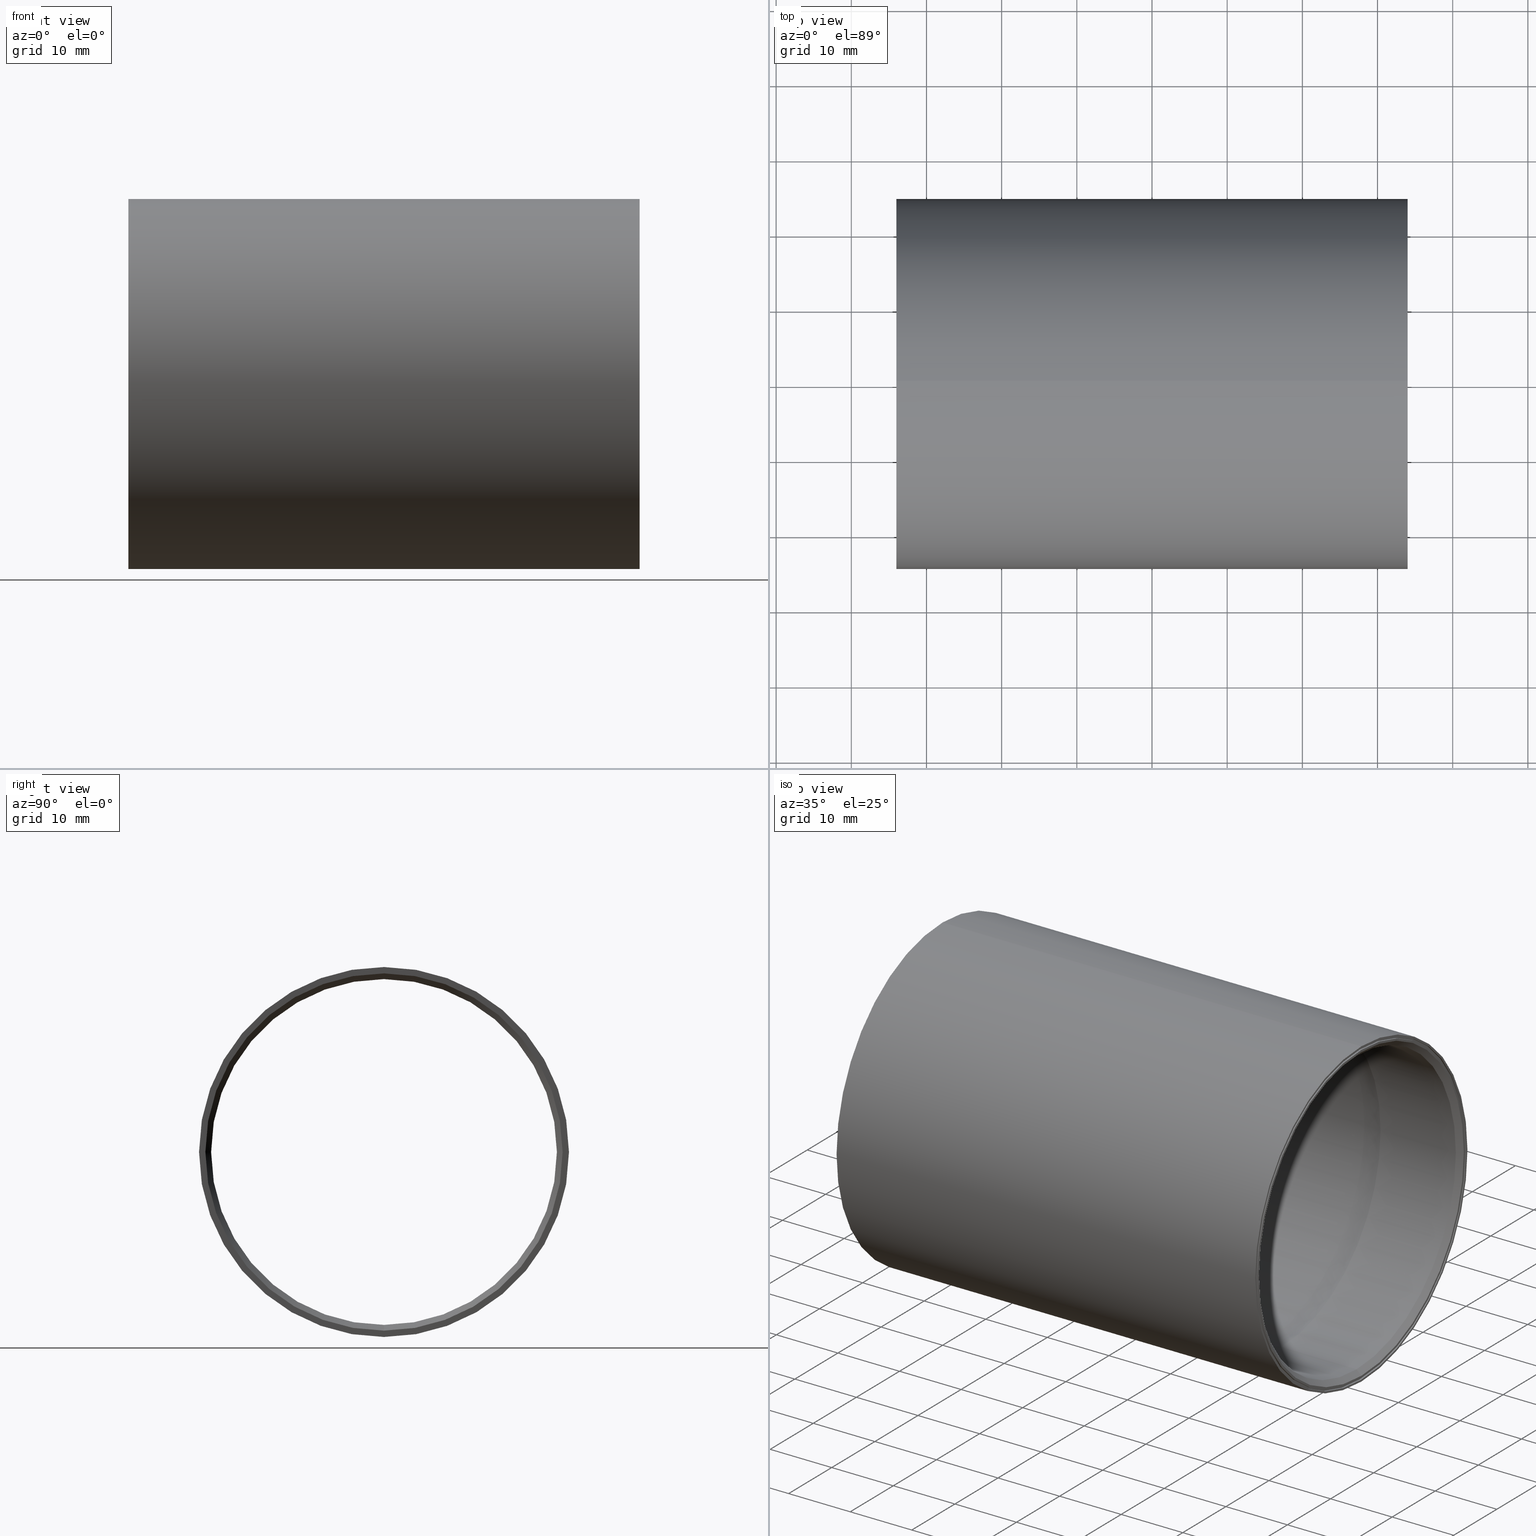
[diagram: canonical four-view strip — front | top / right | iso, engineering-drawing reading convention]
A machine part, canonical four-view strip (front | top / right | iso — engineering-drawing reading convention). The complete STEP part file that produces these views, byte-faithful:
ISO-10303-21;
HEADER;
FILE_DESCRIPTION (( 'STEP AP214' ),
    '1' );
FILE_NAME ('BB4001.STEP',
    '2016-01-05T17:14:59',
    ( 'JeffCAD' ),
    ( 'Microsoft' ),
    'SwSTEP 2.0',
    'SolidWorks 2016',
    '' );
FILE_SCHEMA (( 'AUTOMOTIVE_DESIGN' ));
ENDSEC;

DATA;
#1 = DIRECTION ( 'NONE',  ( 0.0000000000000000000, 0.0000000000000000000, 1.000000000000000000 ) ) ;
#2 = ORIENTED_EDGE ( 'NONE', *, *, #284, .T. ) ;
#3 = LINE ( 'NONE', #164, #132 ) ;
#4 = AXIS2_PLACEMENT_3D ( 'NONE', #678, #85, #223 ) ;
#5 = CARTESIAN_POINT ( 'NONE',  ( 0.7142259959213941300, 0.0000000000000000000, 0.0000000000000000000 ) ) ;
#6 = ORIENTED_EDGE ( 'NONE', *, *, #323, .T. ) ;
#7 = ORIENTED_EDGE ( 'NONE', *, *, #185, .T. ) ;
#8 = VECTOR ( 'NONE', #357, 39.37007874015748100 ) ;
#9 = LINE ( 'NONE', #54, #563 ) ;
#10 = ORIENTED_EDGE ( 'NONE', *, *, #332, .F. ) ;
#11 = LINE ( 'NONE', #530, #687 ) ;
#12 = ORIENTED_EDGE ( 'NONE', *, *, #296, .F. ) ;
#13 = ADVANCED_FACE ( 'NONE', ( #270 ), #67, .F. ) ;
#14 = VECTOR ( 'NONE', #604, 39.37007874015748100 ) ;
#15 = AXIS2_PLACEMENT_3D ( 'NONE', #419, #101, #484 ) ;
#16 = ORIENTED_EDGE ( 'NONE', *, *, #424, .F. ) ;
#17 = AXIS2_PLACEMENT_3D ( 'NONE', #66, #429, #106 ) ;
#18 = ORIENTED_EDGE ( 'NONE', *, *, #437, .F. ) ;
#19 = DIRECTION ( 'NONE',  ( 1.000000000000000000, 0.0000000000000000000, 0.0000000000000000000 ) ) ;
#20 = EDGE_LOOP ( 'NONE', ( #558, #23, #216, #602 ) ) ;
#21 = ORIENTED_EDGE ( 'NONE', *, *, #451, .T. ) ;
#22 = CARTESIAN_POINT ( 'NONE',  ( 0.8274999999999999000, 1.116877880822386100E-016, -0.9054999999999999700 ) ) ;
#23 = ORIENTED_EDGE ( 'NONE', *, *, #506, .F. ) ;
#24 = LINE ( 'NONE', #50, #278 ) ;
#25 = CARTESIAN_POINT ( 'NONE',  ( -1.338500000000000000, 1.145657080602348800E-016, -0.9354999999999998900 ) ) ;
#26 = VERTEX_POINT ( 'NONE', #577 ) ;
#27 = FACE_OUTER_BOUND ( 'NONE', #228, .T. ) ;
#28 = FILL_AREA_STYLE_COLOUR ( '', #112 ) ;
#29 = EDGE_LOOP ( 'NONE', ( #610, #587, #181, #529 ) ) ;
#30 = FACE_BOUND ( 'NONE', #556, .T. ) ;
#31 = VERTEX_POINT ( 'NONE', #134 ) ;
#32 = AXIS2_PLACEMENT_3D ( 'NONE', #170, #549, #500 ) ;
#33 = ORIENTED_EDGE ( 'NONE', *, *, #184, .F. ) ;
#34 = ADVANCED_FACE ( 'NONE', ( #338 ), #306, .T. ) ;
#35 = ORIENTED_EDGE ( 'NONE', *, *, #550, .T. ) ;
#36 = DIRECTION ( 'NONE',  ( 0.0000000000000000000, 0.0000000000000000000, 1.000000000000000000 ) ) ;
#37 = DIRECTION ( 'NONE',  ( 0.0000000000000000000, 0.0000000000000000000, -1.000000000000000000 ) ) ;
#38 = EDGE_LOOP ( 'NONE', ( #124, #441, #274, #453 ) ) ;
#39 = VERTEX_POINT ( 'NONE', #523 ) ;
#40 = CARTESIAN_POINT ( 'NONE',  ( 1.338500000000000000, 0.0000000000000000000, 0.0000000000000000000 ) ) ;
#41 = UNCERTAINTY_MEASURE_WITH_UNIT (LENGTH_MEASURE( 1.000000000000000100E-005 ), #568, 'distance_accuracy_value', 'NONE');
#42 = EDGE_LOOP ( 'NONE', ( #158, #617 ) ) ;
#43 = TOROIDAL_SURFACE ( 'NONE', #171, 0.4184999999999999300, 0.5000000000000001100 ) ;
#44 = ORIENTED_EDGE ( 'NONE', *, *, #185, .F. ) ;
#45 = DIRECTION ( 'NONE',  ( 1.000000000000000000, -0.0000000000000000000, -0.0000000000000000000 ) ) ;
#46 =( NAMED_UNIT ( * ) SI_UNIT ( $, .STERADIAN. ) SOLID_ANGLE_UNIT ( ) );
#47 = EDGE_LOOP ( 'NONE', ( #686, #7 ) ) ;
#48 = DIRECTION ( 'NONE',  ( 0.7071067811865474600, 0.0000000000000000000, -0.7071067811865474600 ) ) ;
#49 = DIRECTION ( 'NONE',  ( 0.0000000000000000000, 0.0000000000000000000, -1.000000000000000000 ) ) ;
#50 = CARTESIAN_POINT ( 'NONE',  ( 0.0000000000000000000, 1.124838085016844000E-016, -0.9185000000000000900 ) ) ;
#51 = DIRECTION ( 'NONE',  ( 1.000000000000000000, -0.0000000000000000000, -0.0000000000000000000 ) ) ;
#52 = CARTESIAN_POINT ( 'NONE',  ( -0.7142259959213941300, 0.0000000000000000000, 0.0000000000000000000 ) ) ;
#53 = ORIENTED_EDGE ( 'NONE', *, *, #194, .F. ) ;
#54 = CARTESIAN_POINT ( 'NONE',  ( 1.328500000000000000, 0.0000000000000000000, -0.9577499999999996600 ) ) ;
#55 = PRESENTATION_STYLE_ASSIGNMENT (( #672 ) ) ;
#56 = VECTOR ( 'NONE', #449, 39.37007874015748100 ) ;
#57 = CARTESIAN_POINT ( 'NONE',  ( 0.0000000000000000000, 0.0000000000000000000, 0.0000000000000000000 ) ) ;
#58 = AXIS2_PLACEMENT_3D ( 'NONE', #624, #477, #145 ) ;
#59 = DIRECTION ( 'NONE',  ( 0.0000000000000000000, 0.0000000000000000000, 1.000000000000000000 ) ) ;
#60 = AXIS2_PLACEMENT_3D ( 'NONE', #565, #625, #510 ) ;
#61 = AXIS2_PLACEMENT_3D ( 'NONE', #214, #372, #493 ) ;
#62 = DIRECTION ( 'NONE',  ( -1.000000000000000000, -0.0000000000000000000, -0.0000000000000000000 ) ) ;
#63 = VERTEX_POINT ( 'NONE', #303 ) ;
#64 = CIRCLE ( 'NONE', #674, 0.9687499999999995600 ) ;
#65 = ORIENTED_EDGE ( 'NONE', *, *, #381, .T. ) ;
#66 = CARTESIAN_POINT ( 'NONE',  ( 0.7142259959213941300, 0.0000000000000000000, 0.0000000000000000000 ) ) ;
#67 = CYLINDRICAL_SURFACE ( 'NONE', #593, 0.9577499999999996600 ) ;
#68 = DIRECTION ( 'NONE',  ( 0.0000000000000000000, 0.0000000000000000000, 1.000000000000000000 ) ) ;
#69 = CYLINDRICAL_SURFACE ( 'NONE', #314, 0.9185000000000000900 ) ;
#70 = ADVANCED_FACE ( 'NONE', ( #622, #202 ), #472, .F. ) ;
#71 = FACE_OUTER_BOUND ( 'NONE', #547, .T. ) ;
#72 = DIRECTION ( 'NONE',  ( -1.000000000000000000, -0.0000000000000000000, -0.0000000000000000000 ) ) ;
#73 = FACE_OUTER_BOUND ( 'NONE', #416, .T. ) ;
#74 = ORIENTED_EDGE ( 'NONE', *, *, #220, .F. ) ;
#75 = DIRECTION ( 'NONE',  ( -1.000000000000000000, -0.0000000000000000000, -0.0000000000000000000 ) ) ;
#76 = ORIENTED_EDGE ( 'NONE', *, *, #332, .T. ) ;
#77 = CARTESIAN_POINT ( 'NONE',  ( 1.338500000000000000, 0.0000000000000000000, 0.0000000000000000000 ) ) ;
#78 =( CONVERSION_BASED_UNIT ( 'INCH', #79 ) LENGTH_UNIT ( ) NAMED_UNIT ( #239 ) );
#79 = LENGTH_MEASURE_WITH_UNIT ( LENGTH_MEASURE( 0.02539999999999999900 ), #390 );
#80 = ORIENTED_EDGE ( 'NONE', *, *, #360, .T. ) ;
#81 = CIRCLE ( 'NONE', #664, 0.9054999999999999700 ) ;
#82 = DIRECTION ( 'NONE',  ( 0.0000000000000000000, -1.224646799147353200E-016, 1.000000000000000000 ) ) ;
#83 = ADVANCED_FACE ( 'NONE', ( #27 ), #149, .F. ) ;
#84 = AXIS2_PLACEMENT_3D ( 'NONE', #5, #366, #59 ) ;
#85 = DIRECTION ( 'NONE',  ( 1.000000000000000000, 0.0000000000000000000, 0.0000000000000000000 ) ) ;
#86 = VECTOR ( 'NONE', #475, 39.37007874015748900 ) ;
#87 = CARTESIAN_POINT ( 'NONE',  ( 0.0000000000000000000, 0.0000000000000000000, 0.0000000000000000000 ) ) ;
#88 = STYLED_ITEM ( 'NONE', ( #55 ), #646 ) ;
#89 = AXIS2_PLACEMENT_3D ( 'NONE', #434, #108, #496 ) ;
#90 = DIMENSIONAL_EXPONENTS ( 1.000000000000000000, 0.0000000000000000000, 0.0000000000000000000, 0.0000000000000000000, 0.0000000000000000000, 0.0000000000000000000, 0.0000000000000000000 ) ;
#91 = DIRECTION ( 'NONE',  ( -1.000000000000000000, -0.0000000000000000000, -0.0000000000000000000 ) ) ;
#92 = VERTEX_POINT ( 'NONE', #354 ) ;
#93 = CARTESIAN_POINT ( 'NONE',  ( 1.338500000000000000, 1.160659003891903700E-016, 0.9477499999999997600 ) ) ;
#94 = DIRECTION ( 'NONE',  ( 0.0000000000000000000, 0.0000000000000000000, 1.000000000000000000 ) ) ;
#95 = DIRECTION ( 'NONE',  ( -1.000000000000000000, -0.0000000000000000000, -0.0000000000000000000 ) ) ;
#96 = DIRECTION ( 'NONE',  ( 1.000000000000000000, -0.0000000000000000000, -0.0000000000000000000 ) ) ;
#97 = ORIENTED_EDGE ( 'NONE', *, *, #392, .T. ) ;
#98 = CARTESIAN_POINT ( 'NONE',  ( 1.308500000000000400, 0.0000000000000000000, 0.9054999999999999700 ) ) ;
#99 = CARTESIAN_POINT ( 'NONE',  ( 1.328500000000000000, 1.172905471883377200E-016, 0.9577499999999996600 ) ) ;
#100 = DIRECTION ( 'NONE',  ( 1.000000000000000000, 0.0000000000000000000, 0.0000000000000000000 ) ) ;
#101 = DIRECTION ( 'NONE',  ( -1.000000000000000000, -0.0000000000000000000, -0.0000000000000000000 ) ) ;
#102 = DIRECTION ( 'NONE',  ( 0.0000000000000000000, 0.0000000000000000000, -1.000000000000000000 ) ) ;
#103 = DIRECTION ( 'NONE',  ( -1.000000000000000000, -0.0000000000000000000, -0.0000000000000000000 ) ) ;
#104 = CARTESIAN_POINT ( 'NONE',  ( -1.308500000000000000, 0.0000000000000000000, 0.0000000000000000000 ) ) ;
#105 = ORIENTED_EDGE ( 'NONE', *, *, #323, .F. ) ;
#106 = DIRECTION ( 'NONE',  ( 0.0000000000000000000, 0.0000000000000000000, 1.000000000000000000 ) ) ;
#107 = CARTESIAN_POINT ( 'NONE',  ( -1.338500000000000000, 0.0000000000000000000, 0.9687499999999995600 ) ) ;
#108 = DIRECTION ( 'NONE',  ( -1.000000000000000000, -0.0000000000000000000, -0.0000000000000000000 ) ) ;
#109 = ORIENTED_EDGE ( 'NONE', *, *, #479, .T. ) ;
#110 = CARTESIAN_POINT ( 'NONE',  ( -1.338500000000000000, 0.0000000000000000000, 0.0000000000000000000 ) ) ;
#111 = DIRECTION ( 'NONE',  ( 1.000000000000000000, 0.0000000000000000000, 0.0000000000000000000 ) ) ;
#112 = COLOUR_RGB ( '',0.7921568627450980000, 0.8196078431372548800, 0.9333333333333333500 ) ;
#113 = CIRCLE ( 'NONE', #312, 0.9354999999999998900 ) ;
#114 = AXIS2_PLACEMENT_3D ( 'NONE', #487, #156, #536 ) ;
#115 = EDGE_CURVE ( 'NONE', #466, #329, #285, .T. ) ;
#116 = PRESENTATION_LAYER_ASSIGNMENT (  '', '', ( #88 ) ) ;
#117 = DIRECTION ( 'NONE',  ( 0.0000000000000000000, 0.0000000000000000000, 1.000000000000000000 ) ) ;
#118 = ORIENTED_EDGE ( 'NONE', *, *, #227, .F. ) ;
#119 = PLANE ( 'NONE',  #649 ) ;
#120 = PRODUCT_DEFINITION_CONTEXT ( 'detailed design', #526, 'design' ) ;
#121 = DIRECTION ( 'NONE',  ( -1.000000000000000000, -0.0000000000000000000, -0.0000000000000000000 ) ) ;
#122 = LINE ( 'NONE', #591, #562 ) ;
#123 = CIRCLE ( 'NONE', #414, 0.9577499999999996600 ) ;
#124 = ORIENTED_EDGE ( 'NONE', *, *, #616, .F. ) ;
#125 = DIRECTION ( 'NONE',  ( 0.0000000000000000000, 0.0000000000000000000, 1.000000000000000000 ) ) ;
#126 = ORIENTED_EDGE ( 'NONE', *, *, #248, .T. ) ;
#127 =( NAMED_UNIT ( * ) SI_UNIT ( $, .STERADIAN. ) SOLID_ANGLE_UNIT ( ) );
#128 = LINE ( 'NONE', #566, #567 ) ;
#129 = AXIS2_PLACEMENT_3D ( 'NONE', #369, #62, #428 ) ;
#130 = DIRECTION ( 'NONE',  ( 0.0000000000000000000, 0.0000000000000000000, -1.000000000000000000 ) ) ;
#131 = ORIENTED_EDGE ( 'NONE', *, *, #639, .T. ) ;
#132 = VECTOR ( 'NONE', #256, 39.37007874015748900 ) ;
#133 = ADVANCED_FACE ( 'NONE', ( #438 ), #590, .F. ) ;
#134 = CARTESIAN_POINT ( 'NONE',  ( 1.328500000000000000, 0.0000000000000000000, -0.9577499999999996600 ) ) ;
#135 = ADVANCED_FACE ( 'NONE', ( #412, #169 ), #348, .T. ) ;
#136 = ORIENTED_EDGE ( 'NONE', *, *, #254, .F. ) ;
#137 = VERTEX_POINT ( 'NONE', #397 ) ;
#138 = DIRECTION ( 'NONE',  ( 0.0000000000000000000, 0.0000000000000000000, -1.000000000000000000 ) ) ;
#139 = ORIENTED_EDGE ( 'NONE', *, *, #627, .T. ) ;
#140 = LINE ( 'NONE', #146, #406 ) ;
#141 = CARTESIAN_POINT ( 'NONE',  ( 1.328500000000000000, 0.0000000000000000000, 0.0000000000000000000 ) ) ;
#142 = PRODUCT_CONTEXT ( 'NONE', #233, 'mechanical' ) ;
#143 = CIRCLE ( 'NONE', #462, 0.9354999999999993300 ) ;
#144 =( NAMED_UNIT ( * ) SI_UNIT ( $, .STERADIAN. ) SOLID_ANGLE_UNIT ( ) );
#145 = DIRECTION ( 'NONE',  ( 0.0000000000000000000, 0.0000000000000000000, 1.000000000000000000 ) ) ;
#146 = CARTESIAN_POINT ( 'NONE',  ( 0.0000000000000000000, 1.108917676627928300E-016, -0.9054999999999999700 ) ) ;
#147 = EDGE_CURVE ( 'NONE', #298, #321, #11, .T. ) ;
#148 = EDGE_CURVE ( 'NONE', #426, #637, #128, .T. ) ;
#149 = CYLINDRICAL_SURFACE ( 'NONE', #250, 0.9577499999999996600 ) ;
#150 = ORIENTED_EDGE ( 'NONE', *, *, #627, .F. ) ;
#151 = EDGE_LOOP ( 'NONE', ( #136, #460, #597, #44 ) ) ;
#152 = CIRCLE ( 'NONE', #17, 0.9185000000000000900 ) ;
#153 = ORIENTED_EDGE ( 'NONE', *, *, #616, .T. ) ;
#154 = DIRECTION ( 'NONE',  ( 1.000000000000000000, 0.0000000000000000000, 0.0000000000000000000 ) ) ;
#155 = EDGE_CURVE ( 'NONE', #350, #175, #265, .T. ) ;
#156 = DIRECTION ( 'NONE',  ( 0.0000000000000000000, -1.000000000000000000, 0.0000000000000000000 ) ) ;
#157 = ORIENTED_EDGE ( 'NONE', *, *, #155, .F. ) ;
#158 = ORIENTED_EDGE ( 'NONE', *, *, #248, .F. ) ;
#159 = MECHANICAL_DESIGN_GEOMETRIC_PRESENTATION_REPRESENTATION (  '', ( #88 ), #195 ) ;
#160 = DIRECTION ( 'NONE',  ( 0.0000000000000000000, 0.0000000000000000000, -1.000000000000000000 ) ) ;
#161 = MANIFOLD_SOLID_BREP ( 'Cut-Extrude-Thin1', #289 ) ;
#162 = CARTESIAN_POINT ( 'NONE',  ( -1.338500000000000000, 0.0000000000000000000, 0.0000000000000000000 ) ) ;
#163 = ORIENTED_EDGE ( 'NONE', *, *, #284, .F. ) ;
#164 = CARTESIAN_POINT ( 'NONE',  ( 1.338500000000000000, 1.145657080602348100E-016, 0.9354999999999993300 ) ) ;
#165 = LINE ( 'NONE', #651, #8 ) ;
#166 = ORIENTED_EDGE ( 'NONE', *, *, #480, .F. ) ;
#167 = DIRECTION ( 'NONE',  ( 0.0000000000000000000, 0.0000000000000000000, -1.000000000000000000 ) ) ;
#168 = DIRECTION ( 'NONE',  ( 0.0000000000000000000, 0.0000000000000000000, 1.000000000000000000 ) ) ;
#169 = FACE_OUTER_BOUND ( 'NONE', #172, .T. ) ;
#170 = CARTESIAN_POINT ( 'NONE',  ( 0.8274999999999999000, 0.0000000000000000000, 0.0000000000000000000 ) ) ;
#171 = AXIS2_PLACEMENT_3D ( 'NONE', #315, #103, #211 ) ;
#172 = EDGE_LOOP ( 'NONE', ( #131, #177 ) ) ;
#173 = CYLINDRICAL_SURFACE ( 'NONE', #535, 0.9054999999999999700 ) ;
#174 = ADVANCED_FACE ( 'NONE', ( #71 ), #494, .T. ) ;
#175 = VERTEX_POINT ( 'NONE', #405 ) ;
#176 = ORIENTED_EDGE ( 'NONE', *, *, #399, .F. ) ;
#177 = ORIENTED_EDGE ( 'NONE', *, *, #605, .T. ) ;
#178 = CARTESIAN_POINT ( 'NONE',  ( -1.338500000000000000, 1.186376586673998000E-016, -0.9687499999999995600 ) ) ;
#179 = ORIENTED_EDGE ( 'NONE', *, *, #592, .F. ) ;
#180 = CIRCLE ( 'NONE', #208, 0.9354999999999998900 ) ;
#181 = ORIENTED_EDGE ( 'NONE', *, *, #184, .T. ) ;
#182 = CARTESIAN_POINT ( 'NONE',  ( 1.338500000000000000, 0.0000000000000000000, 0.0000000000000000000 ) ) ;
#183 = CARTESIAN_POINT ( 'NONE',  ( 1.328500000000000000, 1.160659003891903700E-016, 0.9477499999999997600 ) ) ;
#184 = EDGE_CURVE ( 'NONE', #426, #196, #192, .T. ) ;
#185 = EDGE_CURVE ( 'NONE', #415, #175, #485, .T. ) ;
#186 = APPLICATION_PROTOCOL_DEFINITION ( 'draft international standard', 'automotive_design', 1998, #233 ) ;
#187 = SURFACE_STYLE_USAGE ( .BOTH. , #393 ) ;
#188 = ORIENTED_EDGE ( 'NONE', *, *, #578, .T. ) ;
#189 = SURFACE_STYLE_FILL_AREA ( #626 ) ;
#190 = CIRCLE ( 'NONE', #504, 0.9687499999999995600 ) ;
#191 = CARTESIAN_POINT ( 'NONE',  ( 1.328500000000000000, 0.0000000000000000000, -0.9477499999999997600 ) ) ;
#192 = LINE ( 'NONE', #630, #330 ) ;
#193 = ADVANCED_FACE ( 'NONE', ( #640 ), #643, .F. ) ;
#194 = EDGE_CURVE ( 'NONE', #321, #269, #81, .T. ) ;
#195 =( GEOMETRIC_REPRESENTATION_CONTEXT ( 3 ) GLOBAL_UNCERTAINTY_ASSIGNED_CONTEXT ( ( #517 ) ) GLOBAL_UNIT_ASSIGNED_CONTEXT ( ( #365, #355, #46 ) ) REPRESENTATION_CONTEXT ( 'NONE', 'WORKASPACE' ) );
#196 = VERTEX_POINT ( 'NONE', #420 ) ;
#197 = CIRCLE ( 'NONE', #15, 0.9354999999999993300 ) ;
#198 = DIRECTION ( 'NONE',  ( 1.000000000000000000, -0.0000000000000000000, -0.0000000000000000000 ) ) ;
#199 = ORIENTED_EDGE ( 'NONE', *, *, #467, .T. ) ;
#200 = DIRECTION ( 'NONE',  ( 0.0000000000000000000, 0.0000000000000000000, -1.000000000000000000 ) ) ;
#201 = DIRECTION ( 'NONE',  ( 1.000000000000000000, -0.0000000000000000000, -0.0000000000000000000 ) ) ;
#202 = FACE_OUTER_BOUND ( 'NONE', #582, .T. ) ;
#203 = APPLICATION_PROTOCOL_DEFINITION ( 'draft international standard', 'automotive_design', 1998, #526 ) ;
#204 = PLANE ( 'NONE',  #647 ) ;
#205 = DIRECTION ( 'NONE',  ( 1.000000000000000000, -0.0000000000000000000, -0.0000000000000000000 ) ) ;
#206 = CARTESIAN_POINT ( 'NONE',  ( 0.8274999999999999000, 0.0000000000000000000, 0.0000000000000000000 ) ) ;
#207 = CIRCLE ( 'NONE', #272, 0.5000000000000001100 ) ;
#208 = AXIS2_PLACEMENT_3D ( 'NONE', #162, #539, #215 ) ;
#209 = DIRECTION ( 'NONE',  ( 1.000000000000000000, -0.0000000000000000000, -0.0000000000000000000 ) ) ;
#210 = CARTESIAN_POINT ( 'NONE',  ( -1.338500000000000000, 0.0000000000000000000, 0.0000000000000000000 ) ) ;
#211 = DIRECTION ( 'NONE',  ( 0.0000000000000000000, 0.0000000000000000000, 1.000000000000000000 ) ) ;
#212 = CONICAL_SURFACE ( 'NONE', #417, 0.9354999999999993300, 0.7853981633974482800 ) ;
#213 = ORIENTED_EDGE ( 'NONE', *, *, #639, .F. ) ;
#214 = CARTESIAN_POINT ( 'NONE',  ( -1.308500000000000000, 0.0000000000000000000, 0.0000000000000000000 ) ) ;
#215 = DIRECTION ( 'NONE',  ( 0.0000000000000000000, 0.0000000000000000000, -1.000000000000000000 ) ) ;
#216 = ORIENTED_EDGE ( 'NONE', *, *, #147, .T. ) ;
#217 = CARTESIAN_POINT ( 'NONE',  ( 1.328500000000000000, 0.0000000000000000000, 0.0000000000000000000 ) ) ;
#218 = CARTESIAN_POINT ( 'NONE',  ( -0.8274999999999999000, 0.0000000000000000000, 0.0000000000000000000 ) ) ;
#219 = EDGE_CURVE ( 'NONE', #175, #415, #362, .T. ) ;
#220 = EDGE_CURVE ( 'NONE', #637, #575, #512, .T. ) ;
#221 = ORIENTED_EDGE ( 'NONE', *, *, #439, .F. ) ;
#222 = FACE_OUTER_BOUND ( 'NONE', #447, .T. ) ;
#223 = DIRECTION ( 'NONE',  ( 0.0000000000000000000, 0.0000000000000000000, -1.000000000000000000 ) ) ;
#224 = AXIS2_PLACEMENT_3D ( 'NONE', #40, #586, #37 ) ;
#225 = ADVANCED_FACE ( 'NONE', ( #222 ), #69, .F. ) ;
#226 = FACE_OUTER_BOUND ( 'NONE', #260, .T. ) ;
#227 = EDGE_CURVE ( 'NONE', #92, #26, #207, .T. ) ;
#228 = EDGE_LOOP ( 'NONE', ( #263, #213, #139, #2 ) ) ;
#229 = DIRECTION ( 'NONE',  ( 0.0000000000000000000, 0.0000000000000000000, -1.000000000000000000 ) ) ;
#230 = DIRECTION ( 'NONE',  ( 1.000000000000000000, 0.0000000000000000000, 0.0000000000000000000 ) ) ;
#231 = CARTESIAN_POINT ( 'NONE',  ( -1.308500000000000000, 0.0000000000000000000, 0.9054999999999999700 ) ) ;
#232 = VERTEX_POINT ( 'NONE', #107 ) ;
#233 = APPLICATION_CONTEXT ( 'automotive_design' ) ;
#234 =( LENGTH_UNIT ( ) NAMED_UNIT ( * ) SI_UNIT ( $, .METRE. ) );
#235 = AXIS2_PLACEMENT_3D ( 'NONE', #413, #100, #482 ) ;
#236 = DIRECTION ( 'NONE',  ( 1.000000000000000000, -0.0000000000000000000, -0.0000000000000000000 ) ) ;
#237 = ADVANCED_FACE ( 'NONE', ( #499 ), #327, .T. ) ;
#238 = DIRECTION ( 'NONE',  ( -1.000000000000000000, -0.0000000000000000000, -0.0000000000000000000 ) ) ;
#239 = DIMENSIONAL_EXPONENTS ( 1.000000000000000000, 0.0000000000000000000, 0.0000000000000000000, 0.0000000000000000000, 0.0000000000000000000, 0.0000000000000000000, 0.0000000000000000000 ) ;
#240 = DIRECTION ( 'NONE',  ( -0.0000000000000000000, 1.000000000000000000, 1.224646799147353200E-016 ) ) ;
#241 = CARTESIAN_POINT ( 'NONE',  ( 1.328500000000000000, 0.0000000000000000000, 0.0000000000000000000 ) ) ;
#242 = CARTESIAN_POINT ( 'NONE',  ( 0.7142259959213941300, 0.0000000000000000000, 0.0000000000000000000 ) ) ;
#243 = VECTOR ( 'NONE', #337, 39.37007874015748100 ) ;
#244 = EDGE_LOOP ( 'NONE', ( #654, #264, #6, #440 ) ) ;
#245 = CARTESIAN_POINT ( 'NONE',  ( -1.338500000000000000, 0.0000000000000000000, 0.0000000000000000000 ) ) ;
#246 = DIRECTION ( 'NONE',  ( -0.7071067811865474600, 0.0000000000000000000, 0.7071067811865474600 ) ) ;
#247 = EDGE_CURVE ( 'NONE', #666, #350, #481, .T. ) ;
#248 = EDGE_CURVE ( 'NONE', #350, #666, #340, .T. ) ;
#249 = VECTOR ( 'NONE', #236, 39.37007874015748100 ) ;
#250 = AXIS2_PLACEMENT_3D ( 'NONE', #141, #45, #636 ) ;
#251 = DIRECTION ( 'NONE',  ( -1.000000000000000000, -0.0000000000000000000, -0.0000000000000000000 ) ) ;
#252 = TOROIDAL_SURFACE ( 'NONE', #345, 0.4184999999999999300, 0.5000000000000001100 ) ;
#253 = DIRECTION ( 'NONE',  ( 0.0000000000000000000, 0.0000000000000000000, 1.000000000000000000 ) ) ;
#254 = EDGE_CURVE ( 'NONE', #666, #415, #658, .T. ) ;
#255 = ORIENTED_EDGE ( 'NONE', *, *, #363, .F. ) ;
#256 = DIRECTION ( 'NONE',  ( 0.7071067811865474600, 8.659560562354932900E-017, 0.7071067811865474600 ) ) ;
#257 = ORIENTED_EDGE ( 'NONE', *, *, #115, .T. ) ;
#258 = TOROIDAL_SURFACE ( 'NONE', #344, 0.4184999999999999300, 0.5000000000000001100 ) ;
#259 = FACE_OUTER_BOUND ( 'NONE', #606, .T. ) ;
#260 = EDGE_LOOP ( 'NONE', ( #448, #333, #569, #21 ) ) ;
#261 = DIRECTION ( 'NONE',  ( 0.0000000000000000000, 0.0000000000000000000, 1.000000000000000000 ) ) ;
#262 = ORIENTED_EDGE ( 'NONE', *, *, #439, .T. ) ;
#263 = ORIENTED_EDGE ( 'NONE', *, *, #578, .F. ) ;
#264 = ORIENTED_EDGE ( 'NONE', *, *, #559, .T. ) ;
#265 = LINE ( 'NONE', #191, #249 ) ;
#266 = DIRECTION ( 'NONE',  ( -1.000000000000000000, -0.0000000000000000000, -0.0000000000000000000 ) ) ;
#267 = AXIS2_PLACEMENT_3D ( 'NONE', #409, #96, #476 ) ;
#268 = ADVANCED_FACE ( 'NONE', ( #611 ), #173, .F. ) ;
#269 = VERTEX_POINT ( 'NONE', #557 ) ;
#270 = FACE_OUTER_BOUND ( 'NONE', #684, .T. ) ;
#271 = CIRCLE ( 'NONE', #551, 0.9054999999999999700 ) ;
#272 = AXIS2_PLACEMENT_3D ( 'NONE', #431, #341, #82 ) ;
#273 = ORIENTED_EDGE ( 'NONE', *, *, #381, .F. ) ;
#274 = ORIENTED_EDGE ( 'NONE', *, *, #368, .T. ) ;
#275 = DIRECTION ( 'NONE',  ( -1.000000000000000000, -0.0000000000000000000, -0.0000000000000000000 ) ) ;
#276 = DIRECTION ( 'NONE',  ( -0.0000000000000000000, 0.0000000000000000000, 1.000000000000000000 ) ) ;
#277 = ORIENTED_EDGE ( 'NONE', *, *, #424, .T. ) ;
#278 = VECTOR ( 'NONE', #527, 39.37007874015748100 ) ;
#279 = CIRCLE ( 'NONE', #377, 0.9185000000000000900 ) ;
#280 = DIRECTION ( 'NONE',  ( 0.0000000000000000000, 0.0000000000000000000, 1.000000000000000000 ) ) ;
#281 = VERTEX_POINT ( 'NONE', #178 ) ;
#282 = CARTESIAN_POINT ( 'NONE',  ( 0.0000000000000000000, 0.0000000000000000000, 0.0000000000000000000 ) ) ;
#283 = EDGE_CURVE ( 'NONE', #319, #455, #190, .T. ) ;
#284 = EDGE_CURVE ( 'NONE', #329, #466, #628, .T. ) ;
#285 = CIRCLE ( 'NONE', #224, 0.9577499999999996600 ) ;
#286 = SURFACE_SIDE_STYLE ('',( #189 ) ) ;
#287 = DIRECTION ( 'NONE',  ( 1.000000000000000000, -0.0000000000000000000, -0.0000000000000000000 ) ) ;
#288 = ORIENTED_EDGE ( 'NONE', *, *, #391, .F. ) ;
#289 = CLOSED_SHELL ( 'NONE', ( #174, #13, #193, #346, #631, #133, #225, #379, #268, #237, #292, #70, #34, #443, #676, #572, #634, #501, #465, #663, #398, #83, #135, #518 ) ) ;
#290 = CIRCLE ( 'NONE', #677, 0.9054999999999999700 ) ;
#291 = ORIENTED_EDGE ( 'NONE', *, *, #392, .F. ) ;
#292 = ADVANCED_FACE ( 'NONE', ( #30, #461 ), #119, .F. ) ;
#293 = ORIENTED_EDGE ( 'NONE', *, *, #219, .F. ) ;
#294 = ORIENTED_EDGE ( 'NONE', *, *, #506, .T. ) ;
#295 = ORIENTED_EDGE ( 'NONE', *, *, #399, .T. ) ;
#296 = EDGE_CURVE ( 'NONE', #137, #92, #596, .T. ) ;
#297 = DIRECTION ( 'NONE',  ( 0.0000000000000000000, 0.0000000000000000000, -1.000000000000000000 ) ) ;
#298 = VERTEX_POINT ( 'NONE', #339 ) ;
#299 = AXIS2_PLACEMENT_3D ( 'NONE', #282, #94, #473 ) ;
#300 = DIRECTION ( 'NONE',  ( 0.0000000000000000000, 0.0000000000000000000, -1.000000000000000000 ) ) ;
#301 = VERTEX_POINT ( 'NONE', #25 ) ;
#302 = FACE_OUTER_BOUND ( 'NONE', #514, .T. ) ;
#303 = CARTESIAN_POINT ( 'NONE',  ( 0.7142259959213941300, 0.0000000000000000000, 0.9185000000000000900 ) ) ;
#304 = ORIENTED_EDGE ( 'NONE', *, *, #254, .T. ) ;
#305 = DIRECTION ( 'NONE',  ( 0.0000000000000000000, 0.0000000000000000000, 1.000000000000000000 ) ) ;
#306 = CYLINDRICAL_SURFACE ( 'NONE', #629, 0.9687499999999995600 ) ;
#307 = CARTESIAN_POINT ( 'NONE',  ( -1.338500000000000000, 0.0000000000000000000, 0.9354999999999998900 ) ) ;
#308 = VERTEX_POINT ( 'NONE', #385 ) ;
#309 = AXIS2_PLACEMENT_3D ( 'NONE', #492, #423, #318 ) ;
#310 = FACE_OUTER_BOUND ( 'NONE', #38, .T. ) ;
#311 = DIRECTION ( 'NONE',  ( -1.000000000000000000, -0.0000000000000000000, -0.0000000000000000000 ) ) ;
#312 = AXIS2_PLACEMENT_3D ( 'NONE', #110, #498, #167 ) ;
#313 = EDGE_LOOP ( 'NONE', ( #105, #468, #521, #179 ) ) ;
#314 = AXIS2_PLACEMENT_3D ( 'NONE', #325, #266, #168 ) ;
#315 = CARTESIAN_POINT ( 'NONE',  ( 0.7142259959213941300, 0.0000000000000000000, 0.0000000000000000000 ) ) ;
#316 = ORIENTED_EDGE ( 'NONE', *, *, #391, .T. ) ;
#317 = ORIENTED_EDGE ( 'NONE', *, *, #283, .F. ) ;
#318 = DIRECTION ( 'NONE',  ( 0.0000000000000000000, 0.0000000000000000000, -1.000000000000000000 ) ) ;
#319 = VERTEX_POINT ( 'NONE', #507 ) ;
#320 = CIRCLE ( 'NONE', #114, 0.5000000000000001100 ) ;
#321 = VERTEX_POINT ( 'NONE', #231 ) ;
#322 = DIRECTION ( 'NONE',  ( -1.000000000000000000, -0.0000000000000000000, -0.0000000000000000000 ) ) ;
#323 = EDGE_CURVE ( 'NONE', #269, #321, #290, .T. ) ;
#324 = EDGE_CURVE ( 'NONE', #450, #575, #442, .T. ) ;
#325 = CARTESIAN_POINT ( 'NONE',  ( 0.0000000000000000000, 0.0000000000000000000, 0.0000000000000000000 ) ) ;
#326 = ORIENTED_EDGE ( 'NONE', *, *, #537, .F. ) ;
#327 = CYLINDRICAL_SURFACE ( 'NONE', #421, 0.9687499999999995600 ) ;
#328 = AXIS2_PLACEMENT_3D ( 'NONE', #242, #91, #470 ) ;
#329 = VERTEX_POINT ( 'NONE', #653 ) ;
#330 = VECTOR ( 'NONE', #48, 39.37007874015748900 ) ;
#331 = CARTESIAN_POINT ( 'NONE',  ( 1.328500000000000000, 0.0000000000000000000, 0.0000000000000000000 ) ) ;
#332 = EDGE_CURVE ( 'NONE', #63, #39, #152, .T. ) ;
#333 = ORIENTED_EDGE ( 'NONE', *, *, #522, .T. ) ;
#334 = CIRCLE ( 'NONE', #84, 0.9185000000000000900 ) ;
#335 = PRODUCT_DEFINITION ( 'UNKNOWN', '', #371, #120 ) ;
#336 = ORIENTED_EDGE ( 'NONE', *, *, #652, .F. ) ;
#337 = DIRECTION ( 'NONE',  ( -1.000000000000000000, -0.0000000000000000000, -0.0000000000000000000 ) ) ;
#338 = FACE_OUTER_BOUND ( 'NONE', #564, .T. ) ;
#339 = CARTESIAN_POINT ( 'NONE',  ( -0.8274999999999999000, 0.0000000000000000000, 0.9054999999999999700 ) ) ;
#340 = CIRCLE ( 'NONE', #347, 0.9477499999999997600 ) ;
#341 = DIRECTION ( 'NONE',  ( -0.0000000000000000000, 1.000000000000000000, 1.224646799147353200E-016 ) ) ;
#342 =( LENGTH_UNIT ( ) NAMED_UNIT ( * ) SI_UNIT ( $, .METRE. ) );
#343 = FILL_AREA_STYLE ('',( #28 ) ) ;
#344 = AXIS2_PLACEMENT_3D ( 'NONE', #52, #588, #411 ) ;
#345 = AXIS2_PLACEMENT_3D ( 'NONE', #373, #542, #655 ) ;
#346 = ADVANCED_FACE ( 'NONE', ( #418 ), #396, .F. ) ;
#347 = AXIS2_PLACEMENT_3D ( 'NONE', #331, #19, #382 ) ;
#348 = PLANE ( 'NONE',  #395 ) ;
#349 = CIRCLE ( 'NONE', #463, 0.9054999999999999700 ) ;
#350 = VERTEX_POINT ( 'NONE', #540 ) ;
#351 = CARTESIAN_POINT ( 'NONE',  ( 1.338500000000000000, 0.9687499999999995600, 0.0000000000000000000 ) ) ;
#352 = CARTESIAN_POINT ( 'NONE',  ( 1.328500000000000000, 1.172905471883377200E-016, 0.9577499999999996600 ) ) ;
#353 = ORIENTED_EDGE ( 'NONE', *, *, #115, .F. ) ;
#354 = CARTESIAN_POINT ( 'NONE',  ( -0.7142259959213941300, 1.124838085016844000E-016, -0.9185000000000000900 ) ) ;
#355 =( NAMED_UNIT ( * ) PLANE_ANGLE_UNIT ( ) SI_UNIT ( $, .RADIAN. ) );
#356 = DIRECTION ( 'NONE',  ( 0.0000000000000000000, -1.000000000000000000, 0.0000000000000000000 ) ) ;
#357 = DIRECTION ( 'NONE',  ( -1.000000000000000000, -0.0000000000000000000, -0.0000000000000000000 ) ) ;
#358 = DIRECTION ( 'NONE',  ( 0.0000000000000000000, 0.0000000000000000000, -1.000000000000000000 ) ) ;
#359 = DIRECTION ( 'NONE',  ( 1.000000000000000000, -0.0000000000000000000, -0.0000000000000000000 ) ) ;
#360 = EDGE_CURVE ( 'NONE', #450, #308, #3, .T. ) ;
#361 = ORIENTED_EDGE ( 'NONE', *, *, #479, .F. ) ;
#362 = CIRCLE ( 'NONE', #4, 0.9477499999999997600 ) ;
#363 = EDGE_CURVE ( 'NONE', #455, #319, #554, .T. ) ;
#364 = STYLED_ITEM ( 'NONE', ( #394 ), #161 ) ;
#365 =( CONVERSION_BASED_UNIT ( 'INCH', #546 ) LENGTH_UNIT ( ) NAMED_UNIT ( #403 ) );
#366 = DIRECTION ( 'NONE',  ( -1.000000000000000000, -0.0000000000000000000, -0.0000000000000000000 ) ) ;
#367 = CIRCLE ( 'NONE', #503, 0.5000000000000001100 ) ;
#368 = EDGE_CURVE ( 'NONE', #26, #298, #271, .T. ) ;
#369 = CARTESIAN_POINT ( 'NONE',  ( -0.8274999999999999000, 0.0000000000000000000, 0.0000000000000000000 ) ) ;
#370 = EDGE_LOOP ( 'NONE', ( #326, #10, #620, #671 ) ) ;
#371 = PRODUCT_DEFINITION_FORMATION_WITH_SPECIFIED_SOURCE ( 'ANY', '', #573, .NOT_KNOWN. ) ;
#372 = DIRECTION ( 'NONE',  ( -1.000000000000000000, 0.0000000000000000000, 0.0000000000000000000 ) ) ;
#373 = CARTESIAN_POINT ( 'NONE',  ( -0.7142259959213941300, 0.0000000000000000000, 0.0000000000000000000 ) ) ;
#374 = CARTESIAN_POINT ( 'NONE',  ( 0.0000000000000000000, 1.186376586673998000E-016, -0.9687499999999995600 ) ) ;
#375 = FACE_OUTER_BOUND ( 'NONE', #20, .T. ) ;
#376 = ORIENTED_EDGE ( 'NONE', *, *, #324, .F. ) ;
#377 = AXIS2_PLACEMENT_3D ( 'NONE', #595, #251, #644 ) ;
#378 = AXIS2_PLACEMENT_3D ( 'NONE', #580, #240, #638 ) ;
#379 = ADVANCED_FACE ( 'NONE', ( #310 ), #252, .F. ) ;
#380 = AXIS2_PLACEMENT_3D ( 'NONE', #217, #111, #555 ) ;
#381 = EDGE_CURVE ( 'NONE', #301, #608, #113, .T. ) ;
#382 = DIRECTION ( 'NONE',  ( 0.0000000000000000000, 0.0000000000000000000, -1.000000000000000000 ) ) ;
#383 = CARTESIAN_POINT ( 'NONE',  ( 1.338500000000000000, 0.0000000000000000000, 0.0000000000000000000 ) ) ;
#384 = CARTESIAN_POINT ( 'NONE',  ( 0.0000000000000000000, 0.0000000000000000000, 0.9185000000000000900 ) ) ;
#385 = CARTESIAN_POINT ( 'NONE',  ( 1.338500000000000000, 1.145657080602348100E-016, 0.9354999999999993300 ) ) ;
#386 = CARTESIAN_POINT ( 'NONE',  ( -1.308500000000000000, 0.0000000000000000000, 0.0000000000000000000 ) ) ;
#387 = VECTOR ( 'NONE', #359, 39.37007874015748100 ) ;
#388 = CYLINDRICAL_SURFACE ( 'NONE', #532, 0.9185000000000000900 ) ;
#389 = ORIENTED_EDGE ( 'NONE', *, *, #660, .T. ) ;
#390 =( LENGTH_UNIT ( ) NAMED_UNIT ( * ) SI_UNIT ( $, .METRE. ) );
#391 = EDGE_CURVE ( 'NONE', #455, #281, #571, .T. ) ;
#392 = EDGE_CURVE ( 'NONE', #637, #39, #519, .T. ) ;
#393 = SURFACE_SIDE_STYLE ('',( #552 ) ) ;
#394 = PRESENTATION_STYLE_ASSIGNMENT (( #187 ) ) ;
#395 = AXIS2_PLACEMENT_3D ( 'NONE', #241, #581, #138 ) ;
#396 = CONICAL_SURFACE ( 'NONE', #61, 0.9054999999999999700, 0.7853981633974482800 ) ;
#397 = CARTESIAN_POINT ( 'NONE',  ( -0.7142259959213941300, 0.0000000000000000000, 0.9185000000000000900 ) ) ;
#398 = ADVANCED_FACE ( 'NONE', ( #534 ), #212, .F. ) ;
#399 = EDGE_CURVE ( 'NONE', #450, #426, #349, .T. ) ;
#400 = EDGE_LOOP ( 'NONE', ( #422, #316, #361, #548 ) ) ;
#401 = ORIENTED_EDGE ( 'NONE', *, *, #451, .F. ) ;
#402 = PRODUCT_RELATED_PRODUCT_CATEGORY ( 'part', '', ( #573 ) ) ;
#403 = DIMENSIONAL_EXPONENTS ( 1.000000000000000000, 0.0000000000000000000, 0.0000000000000000000, 0.0000000000000000000, 0.0000000000000000000, 0.0000000000000000000, 0.0000000000000000000 ) ;
#404 = CARTESIAN_POINT ( 'NONE',  ( 1.308500000000000400, 1.108917676627928300E-016, -0.9054999999999999700 ) ) ;
#405 = CARTESIAN_POINT ( 'NONE',  ( 1.338500000000000000, 0.0000000000000000000, -0.9477499999999997600 ) ) ;
#406 = VECTOR ( 'NONE', #642, 39.37007874015748100 ) ;
#407 = LINE ( 'NONE', #384, #243 ) ;
#408 = CARTESIAN_POINT ( 'NONE',  ( -1.308500000000000000, 1.108917676627928300E-016, -0.9054999999999999700 ) ) ;
#409 = CARTESIAN_POINT ( 'NONE',  ( 1.308500000000000400, 0.0000000000000000000, 0.0000000000000000000 ) ) ;
#410 = CARTESIAN_POINT ( 'NONE',  ( 1.338500000000000000, 1.186376586673998000E-016, -0.9687499999999995600 ) ) ;
#411 = DIRECTION ( 'NONE',  ( 0.0000000000000000000, 0.0000000000000000000, 1.000000000000000000 ) ) ;
#412 = FACE_BOUND ( 'NONE', #42, .T. ) ;
#413 = CARTESIAN_POINT ( 'NONE',  ( 1.328500000000000000, 0.0000000000000000000, 0.0000000000000000000 ) ) ;
#414 = AXIS2_PLACEMENT_3D ( 'NONE', #561, #230, #623 ) ;
#415 = VERTEX_POINT ( 'NONE', #93 ) ;
#416 = EDGE_LOOP ( 'NONE', ( #109, #262 ) ) ;
#417 = AXIS2_PLACEMENT_3D ( 'NONE', #486, #198, #300 ) ;
#418 = FACE_OUTER_BOUND ( 'NONE', #313, .T. ) ;
#419 = CARTESIAN_POINT ( 'NONE',  ( 1.338500000000000000, 0.0000000000000000000, 0.0000000000000000000 ) ) ;
#420 = CARTESIAN_POINT ( 'NONE',  ( 1.338500000000000000, 0.0000000000000000000, -0.9354999999999993300 ) ) ;
#421 = AXIS2_PLACEMENT_3D ( 'NONE', #495, #541, #36 ) ;
#422 = ORIENTED_EDGE ( 'NONE', *, *, #283, .T. ) ;
#423 = DIRECTION ( 'NONE',  ( 1.000000000000000000, -0.0000000000000000000, -0.0000000000000000000 ) ) ;
#424 = EDGE_CURVE ( 'NONE', #575, #63, #367, .T. ) ;
#425 = CARTESIAN_POINT ( 'NONE',  ( 1.338500000000000000, 0.0000000000000000000, 0.0000000000000000000 ) ) ;
#426 = VERTEX_POINT ( 'NONE', #404 ) ;
#427 = VERTEX_POINT ( 'NONE', #352 ) ;
#428 = DIRECTION ( 'NONE',  ( 0.0000000000000000000, 0.0000000000000000000, 1.000000000000000000 ) ) ;
#429 = DIRECTION ( 'NONE',  ( -1.000000000000000000, -0.0000000000000000000, -0.0000000000000000000 ) ) ;
#430 = ORIENTED_EDGE ( 'NONE', *, *, #220, .T. ) ;
#431 = CARTESIAN_POINT ( 'NONE',  ( -0.7142259959213941300, 5.125146854431672300E-017, -0.4184999999999999300 ) ) ;
#432 = CYLINDRICAL_SURFACE ( 'NONE', #309, 0.9477499999999997600 ) ;
#433 = FACE_OUTER_BOUND ( 'NONE', #370, .T. ) ;
#434 = CARTESIAN_POINT ( 'NONE',  ( 1.338500000000000000, 0.0000000000000000000, 0.0000000000000000000 ) ) ;
#435 = ORIENTED_EDGE ( 'NONE', *, *, #148, .T. ) ;
#436 = DIRECTION ( 'NONE',  ( -1.000000000000000000, -0.0000000000000000000, -0.0000000000000000000 ) ) ;
#437 = EDGE_CURVE ( 'NONE', #269, #301, #505, .T. ) ;
#438 = FACE_OUTER_BOUND ( 'NONE', #508, .T. ) ;
#439 = EDGE_CURVE ( 'NONE', #281, #232, #650, .T. ) ;
#440 = ORIENTED_EDGE ( 'NONE', *, *, #147, .F. ) ;
#441 = ORIENTED_EDGE ( 'NONE', *, *, #227, .T. ) ;
#442 = LINE ( 'NONE', #538, #14 ) ;
#443 = ADVANCED_FACE ( 'NONE', ( #635, #73 ), #204, .F. ) ;
#444 = PRESENTATION_LAYER_ASSIGNMENT (  '', '', ( #364 ) ) ;
#445 = ORIENTED_EDGE ( 'NONE', *, *, #513, .T. ) ;
#446 = EDGE_LOOP ( 'NONE', ( #18, #53, #603, #273 ) ) ;
#447 = EDGE_LOOP ( 'NONE', ( #166, #511, #153, #336 ) ) ;
#448 = ORIENTED_EDGE ( 'NONE', *, *, #148, .F. ) ;
#449 = DIRECTION ( 'NONE',  ( 1.000000000000000000, -0.0000000000000000000, -0.0000000000000000000 ) ) ;
#450 = VERTEX_POINT ( 'NONE', #98 ) ;
#451 = EDGE_CURVE ( 'NONE', #575, #637, #489, .T. ) ;
#452 = DIRECTION ( 'NONE',  ( 0.0000000000000000000, 0.0000000000000000000, 1.000000000000000000 ) ) ;
#453 = ORIENTED_EDGE ( 'NONE', *, *, #491, .F. ) ;
#454 = FACE_OUTER_BOUND ( 'NONE', #151, .T. ) ;
#455 = VERTEX_POINT ( 'NONE', #410 ) ;
#456 = FILL_AREA_STYLE_COLOUR ( '', #670 ) ;
#457 = CARTESIAN_POINT ( 'NONE',  ( -0.7142259959213941300, 0.0000000000000000000, 0.0000000000000000000 ) ) ;
#458 = DIRECTION ( 'NONE',  ( -1.000000000000000000, -0.0000000000000000000, -0.0000000000000000000 ) ) ;
#459 =( NAMED_UNIT ( * ) PLANE_ANGLE_UNIT ( ) SI_UNIT ( $, .RADIAN. ) );
#460 = ORIENTED_EDGE ( 'NONE', *, *, #247, .T. ) ;
#461 = FACE_OUTER_BOUND ( 'NONE', #47, .T. ) ;
#462 = AXIS2_PLACEMENT_3D ( 'NONE', #77, #458, #125 ) ;
#463 = AXIS2_PLACEMENT_3D ( 'NONE', #524, #201, #585 ) ;
#464 = AXIS2_PLACEMENT_3D ( 'NONE', #182, #560, #229 ) ;
#465 = ADVANCED_FACE ( 'NONE', ( #226 ), #469, .F. ) ;
#466 = VERTEX_POINT ( 'NONE', #598 ) ;
#467 = EDGE_CURVE ( 'NONE', #196, #308, #197, .T. ) ;
#468 = ORIENTED_EDGE ( 'NONE', *, *, #437, .T. ) ;
#469 = CYLINDRICAL_SURFACE ( 'NONE', #58, 0.9054999999999999700 ) ;
#470 = DIRECTION ( 'NONE',  ( 0.0000000000000000000, 0.0000000000000000000, 1.000000000000000000 ) ) ;
#471 = ORIENTED_EDGE ( 'NONE', *, *, #605, .F. ) ;
#472 = PLANE ( 'NONE',  #661 ) ;
#473 = DIRECTION ( 'NONE',  ( 1.000000000000000000, 0.0000000000000000000, 0.0000000000000000000 ) ) ;
#474 = DIRECTION ( 'NONE',  ( -1.000000000000000000, -0.0000000000000000000, -0.0000000000000000000 ) ) ;
#475 = DIRECTION ( 'NONE',  ( -0.7071067811865474600, 8.659560562354932900E-017, -0.7071067811865474600 ) ) ;
#476 = DIRECTION ( 'NONE',  ( 0.0000000000000000000, 0.0000000000000000000, 1.000000000000000000 ) ) ;
#477 = DIRECTION ( 'NONE',  ( -1.000000000000000000, -0.0000000000000000000, -0.0000000000000000000 ) ) ;
#478 = CARTESIAN_POINT ( 'NONE',  ( 0.8274999999999999000, 0.0000000000000000000, 0.9054999999999999700 ) ) ;
#479 = EDGE_CURVE ( 'NONE', #232, #281, #64, .T. ) ;
#480 = EDGE_CURVE ( 'NONE', #39, #63, #334, .T. ) ;
#481 = CIRCLE ( 'NONE', #380, 0.9477499999999997600 ) ;
#482 = DIRECTION ( 'NONE',  ( 0.0000000000000000000, 0.0000000000000000000, -1.000000000000000000 ) ) ;
#483 = MECHANICAL_DESIGN_GEOMETRIC_PRESENTATION_REPRESENTATION (  '', ( #364 ), #516 ) ;
#484 = DIRECTION ( 'NONE',  ( 0.0000000000000000000, 0.0000000000000000000, 1.000000000000000000 ) ) ;
#485 = CIRCLE ( 'NONE', #599, 0.9477499999999997600 ) ;
#486 = CARTESIAN_POINT ( 'NONE',  ( 1.338500000000000000, 0.0000000000000000000, 0.0000000000000000000 ) ) ;
#487 = CARTESIAN_POINT ( 'NONE',  ( -0.7142259959213941300, 0.0000000000000000000, 0.4184999999999999300 ) ) ;
#488 = DIRECTION ( 'NONE',  ( -1.000000000000000000, 0.0000000000000000000, 0.0000000000000000000 ) ) ;
#489 = CIRCLE ( 'NONE', #613, 0.9054999999999999700 ) ;
#490 = EDGE_LOOP ( 'NONE', ( #163, #353 ) ) ;
#491 = EDGE_CURVE ( 'NONE', #137, #298, #320, .T. ) ;
#492 = CARTESIAN_POINT ( 'NONE',  ( 1.328500000000000000, 0.0000000000000000000, 0.0000000000000000000 ) ) ;
#493 = DIRECTION ( 'NONE',  ( 0.0000000000000000000, 0.0000000000000000000, 1.000000000000000000 ) ) ;
#494 = CYLINDRICAL_SURFACE ( 'NONE', #632, 0.9477499999999997600 ) ;
#495 = CARTESIAN_POINT ( 'NONE',  ( 0.0000000000000000000, 0.0000000000000000000, 0.0000000000000000000 ) ) ;
#496 = DIRECTION ( 'NONE',  ( 0.0000000000000000000, 0.0000000000000000000, 1.000000000000000000 ) ) ;
#497 = PRODUCT_DEFINITION_SHAPE ( 'NONE', 'NONE',  #335 ) ;
#498 = DIRECTION ( 'NONE',  ( 1.000000000000000000, 0.0000000000000000000, 0.0000000000000000000 ) ) ;
#499 = FACE_OUTER_BOUND ( 'NONE', #400, .T. ) ;
#500 = DIRECTION ( 'NONE',  ( 0.0000000000000000000, 0.0000000000000000000, 1.000000000000000000 ) ) ;
#501 = ADVANCED_FACE ( 'NONE', ( #618 ), #43, .F. ) ;
#502 = AXIS2_PLACEMENT_3D ( 'NONE', #531, #311, #1 ) ;
#503 = AXIS2_PLACEMENT_3D ( 'NONE', #681, #356, #49 ) ;
#504 = AXIS2_PLACEMENT_3D ( 'NONE', #383, #75, #452 ) ;
#505 = LINE ( 'NONE', #408, #86 ) ;
#506 = EDGE_CURVE ( 'NONE', #298, #26, #607, .T. ) ;
#507 = CARTESIAN_POINT ( 'NONE',  ( 1.338500000000000000, 0.0000000000000000000, 0.9687499999999995600 ) ) ;
#508 = EDGE_LOOP ( 'NONE', ( #74, #97, #594, #16 ) ) ;
#509 = DIRECTION ( 'NONE',  ( 0.0000000000000000000, 0.0000000000000000000, 1.000000000000000000 ) ) ;
#510 = DIRECTION ( 'NONE',  ( 0.0000000000000000000, 0.0000000000000000000, 1.000000000000000000 ) ) ;
#511 = ORIENTED_EDGE ( 'NONE', *, *, #537, .T. ) ;
#512 = CIRCLE ( 'NONE', #32, 0.9054999999999999700 ) ;
#513 = EDGE_CURVE ( 'NONE', #608, #301, #180, .T. ) ;
#514 = EDGE_LOOP ( 'NONE', ( #118, #12, #574, #294 ) ) ;
#515 = CARTESIAN_POINT ( 'NONE',  ( 1.328500000000000000, 0.0000000000000000000, 0.0000000000000000000 ) ) ;
#516 =( GEOMETRIC_REPRESENTATION_CONTEXT ( 3 ) GLOBAL_UNCERTAINTY_ASSIGNED_CONTEXT ( ( #41 ) ) GLOBAL_UNIT_ASSIGNED_CONTEXT ( ( #568, #673, #144 ) ) REPRESENTATION_CONTEXT ( 'NONE', 'WORKASPACE' ) );
#517 = UNCERTAINTY_MEASURE_WITH_UNIT (LENGTH_MEASURE( 1.000000000000000100E-005 ), #365, 'distance_accuracy_value', 'NONE');
#518 = ADVANCED_FACE ( 'NONE', ( #454 ), #432, .T. ) ;
#519 = CIRCLE ( 'NONE', #378, 0.5000000000000001100 ) ;
#520 = DIRECTION ( 'NONE',  ( -1.000000000000000000, 0.0000000000000000000, 0.0000000000000000000 ) ) ;
#521 = ORIENTED_EDGE ( 'NONE', *, *, #513, .F. ) ;
#522 = EDGE_CURVE ( 'NONE', #426, #450, #583, .T. ) ;
#523 = CARTESIAN_POINT ( 'NONE',  ( 0.7142259959213941300, 1.124838085016844000E-016, -0.9185000000000000900 ) ) ;
#524 = CARTESIAN_POINT ( 'NONE',  ( 1.308500000000000400, 0.0000000000000000000, 0.0000000000000000000 ) ) ;
#525 = CARTESIAN_POINT ( 'NONE',  ( 1.328500000000000000, 0.0000000000000000000, 0.0000000000000000000 ) ) ;
#526 = APPLICATION_CONTEXT ( 'automotive_design' ) ;
#527 = DIRECTION ( 'NONE',  ( -1.000000000000000000, -0.0000000000000000000, -0.0000000000000000000 ) ) ;
#528 = CYLINDRICAL_SURFACE ( 'NONE', #60, 0.9054999999999999700 ) ;
#529 = ORIENTED_EDGE ( 'NONE', *, *, #660, .F. ) ;
#530 = CARTESIAN_POINT ( 'NONE',  ( 0.0000000000000000000, 0.0000000000000000000, 0.9054999999999999700 ) ) ;
#531 = CARTESIAN_POINT ( 'NONE',  ( 0.0000000000000000000, 0.0000000000000000000, 0.0000000000000000000 ) ) ;
#532 = AXIS2_PLACEMENT_3D ( 'NONE', #57, #275, #668 ) ;
#533 = AXIS2_PLACEMENT_3D ( 'NONE', #245, #641, #305 ) ;
#534 = FACE_OUTER_BOUND ( 'NONE', #29, .T. ) ;
#535 = AXIS2_PLACEMENT_3D ( 'NONE', #615, #72, #117 ) ;
#536 = DIRECTION ( 'NONE',  ( 0.0000000000000000000, 0.0000000000000000000, -1.000000000000000000 ) ) ;
#537 = EDGE_CURVE ( 'NONE', #39, #92, #24, .T. ) ;
#538 = CARTESIAN_POINT ( 'NONE',  ( 0.0000000000000000000, 0.0000000000000000000, 0.9054999999999999700 ) ) ;
#539 = DIRECTION ( 'NONE',  ( 1.000000000000000000, 0.0000000000000000000, 0.0000000000000000000 ) ) ;
#540 = CARTESIAN_POINT ( 'NONE',  ( 1.328500000000000000, 0.0000000000000000000, -0.9477499999999997600 ) ) ;
#541 = DIRECTION ( 'NONE',  ( -1.000000000000000000, -0.0000000000000000000, -0.0000000000000000000 ) ) ;
#542 = DIRECTION ( 'NONE',  ( -1.000000000000000000, -0.0000000000000000000, -0.0000000000000000000 ) ) ;
#543 = LINE ( 'NONE', #99, #387 ) ;
#544 = FACE_OUTER_BOUND ( 'NONE', #446, .T. ) ;
#545 = EDGE_LOOP ( 'NONE', ( #176, #80, #601, #33 ) ) ;
#546 = LENGTH_MEASURE_WITH_UNIT ( LENGTH_MEASURE( 0.02539999999999999900 ), #342 );
#547 = EDGE_LOOP ( 'NONE', ( #126, #304, #293, #157 ) ) ;
#548 = ORIENTED_EDGE ( 'NONE', *, *, #550, .F. ) ;
#549 = DIRECTION ( 'NONE',  ( -1.000000000000000000, -0.0000000000000000000, -0.0000000000000000000 ) ) ;
#550 = EDGE_CURVE ( 'NONE', #319, #232, #165, .T. ) ;
#551 = AXIS2_PLACEMENT_3D ( 'NONE', #218, #609, #261 ) ;
#552 = SURFACE_STYLE_FILL_AREA ( #343 ) ;
#553 = AXIS2_PLACEMENT_3D ( 'NONE', #589, #205, #648 ) ;
#554 = CIRCLE ( 'NONE', #89, 0.9687499999999995600 ) ;
#555 = DIRECTION ( 'NONE',  ( 0.0000000000000000000, 0.0000000000000000000, -1.000000000000000000 ) ) ;
#556 = EDGE_LOOP ( 'NONE', ( #199, #389 ) ) ;
#557 = CARTESIAN_POINT ( 'NONE',  ( -1.308500000000000000, 1.108917676627928300E-016, -0.9054999999999999700 ) ) ;
#558 = ORIENTED_EDGE ( 'NONE', *, *, #559, .F. ) ;
#559 = EDGE_CURVE ( 'NONE', #26, #269, #140, .T. ) ;
#560 = DIRECTION ( 'NONE',  ( 1.000000000000000000, 0.0000000000000000000, 0.0000000000000000000 ) ) ;
#561 = CARTESIAN_POINT ( 'NONE',  ( 1.328500000000000000, 0.0000000000000000000, 0.0000000000000000000 ) ) ;
#562 = VECTOR ( 'NONE', #246, 39.37007874015748900 ) ;
#563 = VECTOR ( 'NONE', #209, 39.37007874015748100 ) ;
#564 = EDGE_LOOP ( 'NONE', ( #288, #612, #35, #221 ) ) ;
#565 = CARTESIAN_POINT ( 'NONE',  ( 0.0000000000000000000, 0.0000000000000000000, 0.0000000000000000000 ) ) ;
#566 = CARTESIAN_POINT ( 'NONE',  ( 0.0000000000000000000, 1.108917676627928300E-016, -0.9054999999999999700 ) ) ;
#567 = VECTOR ( 'NONE', #95, 39.37007874015748100 ) ;
#568 =( CONVERSION_BASED_UNIT ( 'INCH', #662 ) LENGTH_UNIT ( ) NAMED_UNIT ( #90 ) );
#569 = ORIENTED_EDGE ( 'NONE', *, *, #324, .T. ) ;
#570 = AXIS2_PLACEMENT_3D ( 'NONE', #386, #669, #280 ) ;
#571 = LINE ( 'NONE', #374, #633 ) ;
#572 = ADVANCED_FACE ( 'NONE', ( #302 ), #258, .F. ) ;
#573 = PRODUCT ( 'BB4001', 'BB4001', '', ( #142 ) ) ;
#574 = ORIENTED_EDGE ( 'NONE', *, *, #491, .T. ) ;
#575 = VERTEX_POINT ( 'NONE', #478 ) ;
#576 = CARTESIAN_POINT ( 'NONE',  ( -1.308500000000000000, 0.0000000000000000000, 0.0000000000000000000 ) ) ;
#577 = CARTESIAN_POINT ( 'NONE',  ( -0.8274999999999999000, 1.108917676627928300E-016, -0.9054999999999999700 ) ) ;
#578 = EDGE_CURVE ( 'NONE', #427, #466, #543, .T. ) ;
#579 = EDGE_LOOP ( 'NONE', ( #291, #401, #277, #76 ) ) ;
#580 = CARTESIAN_POINT ( 'NONE',  ( 0.7142259959213941300, 5.125146854431672300E-017, -0.4184999999999999300 ) ) ;
#581 = DIRECTION ( 'NONE',  ( 1.000000000000000000, 0.0000000000000000000, 0.0000000000000000000 ) ) ;
#582 = EDGE_LOOP ( 'NONE', ( #317, #255 ) ) ;
#583 = CIRCLE ( 'NONE', #267, 0.9054999999999999700 ) ;
#584 = CIRCLE ( 'NONE', #235, 0.9577499999999996600 ) ;
#585 = DIRECTION ( 'NONE',  ( 0.0000000000000000000, 0.0000000000000000000, 1.000000000000000000 ) ) ;
#586 = DIRECTION ( 'NONE',  ( 1.000000000000000000, 0.0000000000000000000, 0.0000000000000000000 ) ) ;
#587 = ORIENTED_EDGE ( 'NONE', *, *, #522, .F. ) ;
#588 = DIRECTION ( 'NONE',  ( -1.000000000000000000, -0.0000000000000000000, -0.0000000000000000000 ) ) ;
#589 = CARTESIAN_POINT ( 'NONE',  ( 1.338500000000000000, 0.0000000000000000000, 0.0000000000000000000 ) ) ;
#590 = TOROIDAL_SURFACE ( 'NONE', #328, 0.4184999999999999300, 0.5000000000000001100 ) ;
#591 = CARTESIAN_POINT ( 'NONE',  ( -1.308500000000000000, 0.0000000000000000000, 0.9054999999999999700 ) ) ;
#592 = EDGE_CURVE ( 'NONE', #321, #608, #122, .T. ) ;
#593 = AXIS2_PLACEMENT_3D ( 'NONE', #525, #51, #200 ) ;
#594 = ORIENTED_EDGE ( 'NONE', *, *, #480, .T. ) ;
#595 = CARTESIAN_POINT ( 'NONE',  ( -0.7142259959213941300, 0.0000000000000000000, 0.0000000000000000000 ) ) ;
#596 = CIRCLE ( 'NONE', #614, 0.9185000000000000900 ) ;
#597 = ORIENTED_EDGE ( 'NONE', *, *, #155, .T. ) ;
#598 = CARTESIAN_POINT ( 'NONE',  ( 1.338500000000000000, 1.172905471883377200E-016, 0.9577499999999996600 ) ) ;
#599 = AXIS2_PLACEMENT_3D ( 'NONE', #425, #154, #102 ) ;
#600 = DIRECTION ( 'NONE',  ( -1.000000000000000000, -0.0000000000000000000, -0.0000000000000000000 ) ) ;
#601 = ORIENTED_EDGE ( 'NONE', *, *, #467, .F. ) ;
#602 = ORIENTED_EDGE ( 'NONE', *, *, #194, .T. ) ;
#603 = ORIENTED_EDGE ( 'NONE', *, *, #592, .T. ) ;
#604 = DIRECTION ( 'NONE',  ( -1.000000000000000000, -0.0000000000000000000, -0.0000000000000000000 ) ) ;
#605 = EDGE_CURVE ( 'NONE', #427, #31, #584, .T. ) ;
#606 = EDGE_LOOP ( 'NONE', ( #295, #435, #430, #376 ) ) ;
#607 = CIRCLE ( 'NONE', #129, 0.9054999999999999700 ) ;
#608 = VERTEX_POINT ( 'NONE', #307 ) ;
#609 = DIRECTION ( 'NONE',  ( -1.000000000000000000, -0.0000000000000000000, -0.0000000000000000000 ) ) ;
#610 = ORIENTED_EDGE ( 'NONE', *, *, #360, .F. ) ;
#611 = FACE_OUTER_BOUND ( 'NONE', #244, .T. ) ;
#612 = ORIENTED_EDGE ( 'NONE', *, *, #363, .T. ) ;
#613 = AXIS2_PLACEMENT_3D ( 'NONE', #206, #322, #68 ) ;
#614 = AXIS2_PLACEMENT_3D ( 'NONE', #457, #121, #509 ) ;
#615 = CARTESIAN_POINT ( 'NONE',  ( 0.0000000000000000000, 0.0000000000000000000, 0.0000000000000000000 ) ) ;
#616 = EDGE_CURVE ( 'NONE', #92, #137, #279, .T. ) ;
#617 = ORIENTED_EDGE ( 'NONE', *, *, #247, .F. ) ;
#618 = FACE_OUTER_BOUND ( 'NONE', #579, .T. ) ;
#619 = UNCERTAINTY_MEASURE_WITH_UNIT (LENGTH_MEASURE( 1.000000000000000100E-005 ), #78, 'distance_accuracy_value', 'NONE');
#620 = ORIENTED_EDGE ( 'NONE', *, *, #652, .T. ) ;
#621 = DIRECTION ( 'NONE',  ( -1.000000000000000000, 0.0000000000000000000, -0.0000000000000000000 ) ) ;
#622 = FACE_BOUND ( 'NONE', #490, .T. ) ;
#623 = DIRECTION ( 'NONE',  ( 0.0000000000000000000, 0.0000000000000000000, -1.000000000000000000 ) ) ;
#624 = CARTESIAN_POINT ( 'NONE',  ( 0.0000000000000000000, 0.0000000000000000000, 0.0000000000000000000 ) ) ;
#625 = DIRECTION ( 'NONE',  ( -1.000000000000000000, -0.0000000000000000000, -0.0000000000000000000 ) ) ;
#626 = FILL_AREA_STYLE ('',( #456 ) ) ;
#627 = EDGE_CURVE ( 'NONE', #31, #329, #9, .T. ) ;
#628 = CIRCLE ( 'NONE', #464, 0.9577499999999996600 ) ;
#629 = AXIS2_PLACEMENT_3D ( 'NONE', #87, #238, #675 ) ;
#630 = CARTESIAN_POINT ( 'NONE',  ( 1.338500000000000000, 0.0000000000000000000, -0.9354999999999993300 ) ) ;
#631 = ADVANCED_FACE ( 'NONE', ( #259 ), #683, .F. ) ;
#632 = AXIS2_PLACEMENT_3D ( 'NONE', #515, #287, #130 ) ;
#633 = VECTOR ( 'NONE', #436, 39.37007874015748100 ) ;
#634 = ADVANCED_FACE ( 'NONE', ( #433 ), #388, .F. ) ;
#635 = FACE_BOUND ( 'NONE', #657, .T. ) ;
#636 = DIRECTION ( 'NONE',  ( 0.0000000000000000000, 0.0000000000000000000, -1.000000000000000000 ) ) ;
#637 = VERTEX_POINT ( 'NONE', #22 ) ;
#638 = DIRECTION ( 'NONE',  ( 0.0000000000000000000, -1.224646799147353200E-016, 1.000000000000000000 ) ) ;
#639 = EDGE_CURVE ( 'NONE', #31, #427, #123, .T. ) ;
#640 = FACE_OUTER_BOUND ( 'NONE', #545, .T. ) ;
#641 = DIRECTION ( 'NONE',  ( -1.000000000000000000, -0.0000000000000000000, -0.0000000000000000000 ) ) ;
#642 = DIRECTION ( 'NONE',  ( -1.000000000000000000, -0.0000000000000000000, -0.0000000000000000000 ) ) ;
#643 = CONICAL_SURFACE ( 'NONE', #553, 0.9354999999999993300, 0.7853981633974482800 ) ;
#644 = DIRECTION ( 'NONE',  ( 0.0000000000000000000, 0.0000000000000000000, 1.000000000000000000 ) ) ;
#645 =( GEOMETRIC_REPRESENTATION_CONTEXT ( 3 ) GLOBAL_UNCERTAINTY_ASSIGNED_CONTEXT ( ( #619 ) ) GLOBAL_UNIT_ASSIGNED_CONTEXT ( ( #78, #459, #127 ) ) REPRESENTATION_CONTEXT ( 'NONE', 'WORKASPACE' ) );
#646 = ADVANCED_BREP_SHAPE_REPRESENTATION ( 'BB4001', ( #161, #299 ), #645 ) ;
#647 = AXIS2_PLACEMENT_3D ( 'NONE', #679, #685, #358 ) ;
#648 = DIRECTION ( 'NONE',  ( 0.0000000000000000000, 0.0000000000000000000, -1.000000000000000000 ) ) ;
#649 = AXIS2_PLACEMENT_3D ( 'NONE', #667, #621, #276 ) ;
#650 = CIRCLE ( 'NONE', #533, 0.9687499999999995600 ) ;
#651 = CARTESIAN_POINT ( 'NONE',  ( 0.0000000000000000000, 0.0000000000000000000, 0.9687499999999995600 ) ) ;
#652 = EDGE_CURVE ( 'NONE', #63, #137, #407, .T. ) ;
#653 = CARTESIAN_POINT ( 'NONE',  ( 1.338500000000000000, 0.0000000000000000000, -0.9577499999999996600 ) ) ;
#654 = ORIENTED_EDGE ( 'NONE', *, *, #368, .F. ) ;
#655 = DIRECTION ( 'NONE',  ( 0.0000000000000000000, 0.0000000000000000000, 1.000000000000000000 ) ) ;
#656 = CONICAL_SURFACE ( 'NONE', #570, 0.9054999999999999700, 0.7853981633974482800 ) ;
#657 = EDGE_LOOP ( 'NONE', ( #445, #65 ) ) ;
#658 = LINE ( 'NONE', #665, #56 ) ;
#659 = SHAPE_DEFINITION_REPRESENTATION ( #497, #646 ) ;
#660 = EDGE_CURVE ( 'NONE', #308, #196, #143, .T. ) ;
#661 = AXIS2_PLACEMENT_3D ( 'NONE', #351, #680, #682 ) ;
#662 = LENGTH_MEASURE_WITH_UNIT ( LENGTH_MEASURE( 0.02539999999999999900 ), #234 );
#663 = ADVANCED_FACE ( 'NONE', ( #544 ), #656, .F. ) ;
#664 = AXIS2_PLACEMENT_3D ( 'NONE', #576, #520, #297 ) ;
#665 = CARTESIAN_POINT ( 'NONE',  ( 1.328500000000000000, 1.160659003891903700E-016, 0.9477499999999997600 ) ) ;
#666 = VERTEX_POINT ( 'NONE', #183 ) ;
#667 = CARTESIAN_POINT ( 'NONE',  ( 1.338500000000000000, 0.9687499999999995600, 0.0000000000000000000 ) ) ;
#668 = DIRECTION ( 'NONE',  ( 0.0000000000000000000, 0.0000000000000000000, 1.000000000000000000 ) ) ;
#669 = DIRECTION ( 'NONE',  ( -1.000000000000000000, 0.0000000000000000000, 0.0000000000000000000 ) ) ;
#670 = COLOUR_RGB ( '',0.7921568627450980000, 0.8196078431372548800, 0.9333333333333333500 ) ;
#671 = ORIENTED_EDGE ( 'NONE', *, *, #296, .T. ) ;
#672 = SURFACE_STYLE_USAGE ( .BOTH. , #286 ) ;
#673 =( NAMED_UNIT ( * ) PLANE_ANGLE_UNIT ( ) SI_UNIT ( $, .RADIAN. ) );
#674 = AXIS2_PLACEMENT_3D ( 'NONE', #210, #600, #253 ) ;
#675 = DIRECTION ( 'NONE',  ( 0.0000000000000000000, 0.0000000000000000000, 1.000000000000000000 ) ) ;
#676 = ADVANCED_FACE ( 'NONE', ( #375 ), #528, .F. ) ;
#677 = AXIS2_PLACEMENT_3D ( 'NONE', #104, #488, #160 ) ;
#678 = CARTESIAN_POINT ( 'NONE',  ( 1.338500000000000000, 0.0000000000000000000, 0.0000000000000000000 ) ) ;
#679 = CARTESIAN_POINT ( 'NONE',  ( -1.338500000000000000, 0.9687499999999995600, 0.0000000000000000000 ) ) ;
#680 = DIRECTION ( 'NONE',  ( -1.000000000000000000, 0.0000000000000000000, -0.0000000000000000000 ) ) ;
#681 = CARTESIAN_POINT ( 'NONE',  ( 0.7142259959213941300, 0.0000000000000000000, 0.4184999999999999300 ) ) ;
#682 = DIRECTION ( 'NONE',  ( -0.0000000000000000000, 0.0000000000000000000, 1.000000000000000000 ) ) ;
#683 = CYLINDRICAL_SURFACE ( 'NONE', #502, 0.9054999999999999700 ) ;
#684 = EDGE_LOOP ( 'NONE', ( #471, #188, #257, #150 ) ) ;
#685 = DIRECTION ( 'NONE',  ( 1.000000000000000000, 0.0000000000000000000, 0.0000000000000000000 ) ) ;
#686 = ORIENTED_EDGE ( 'NONE', *, *, #219, .T. ) ;
#687 = VECTOR ( 'NONE', #474, 39.37007874015748100 ) ;
ENDSEC;
END-ISO-10303-21;
